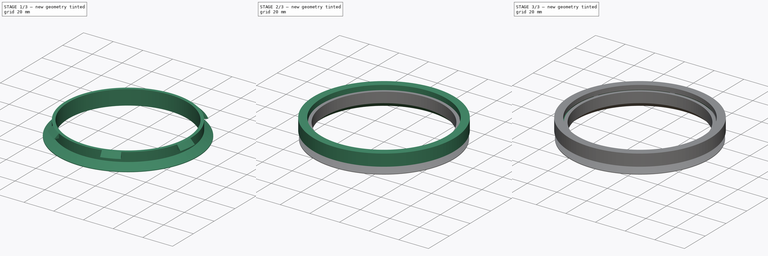
[diagram: build sequence overview — one tinted view per stage of 3, left to right]
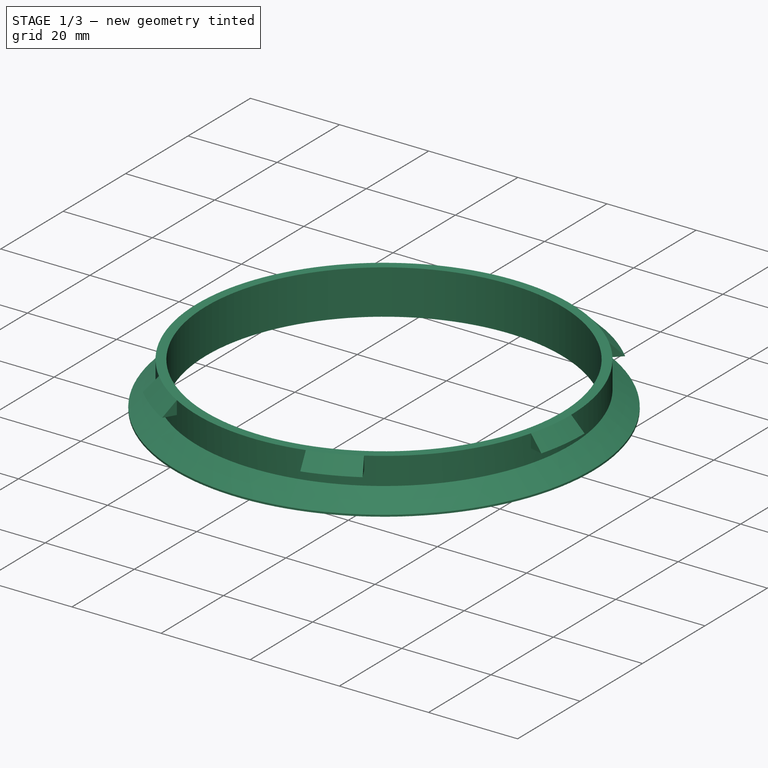
[diagram: stage 1 of 3 — iso view after this stage's code; geometry added in this stage tinted green]
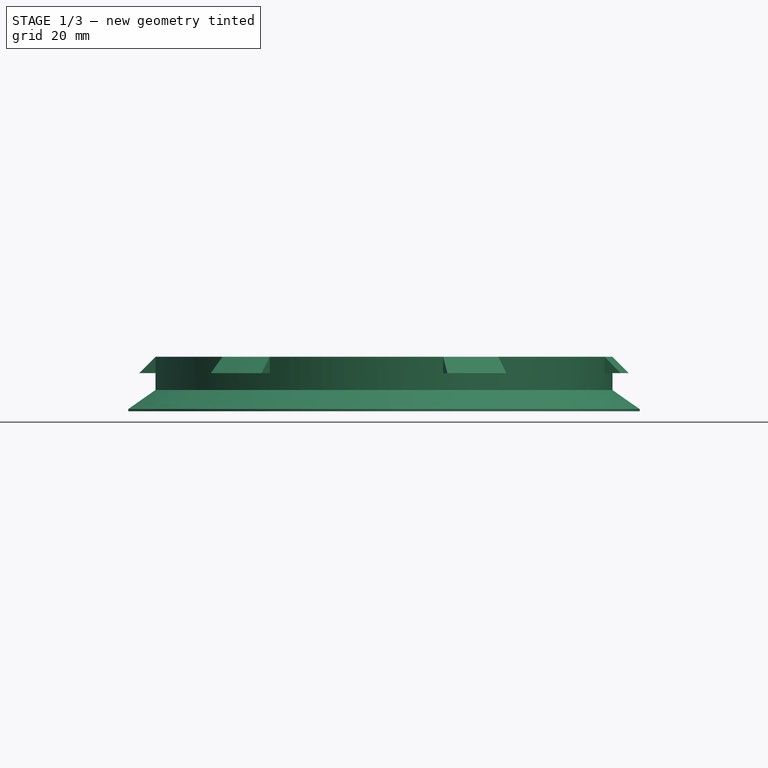
[diagram: stage 1 of 3 — front view after this stage's code; geometry added in this stage tinted green]
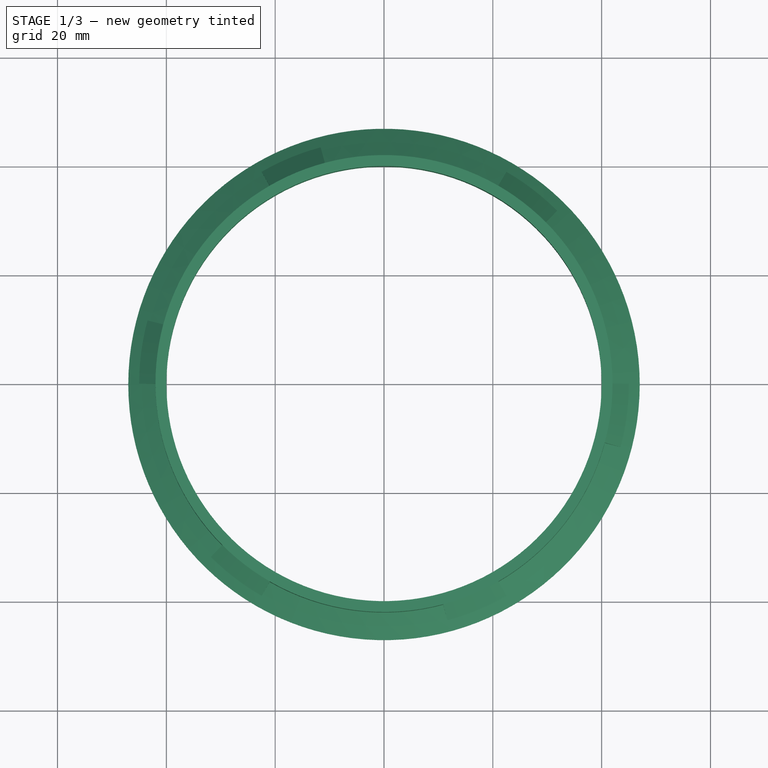
[diagram: stage 1 of 3 — top view after this stage's code; geometry added in this stage tinted green]
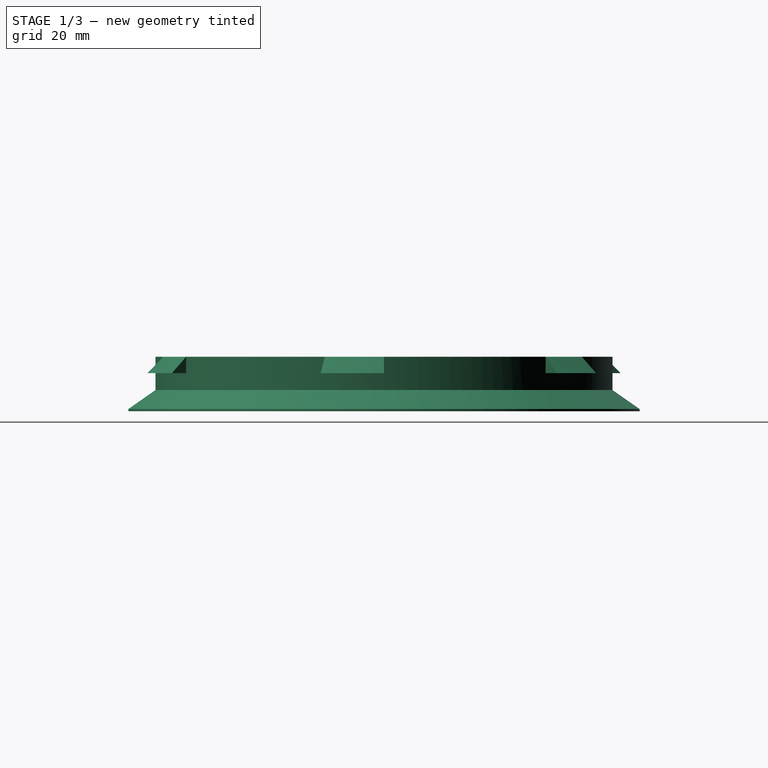
[diagram: stage 1 of 3 — right view after this stage's code; geometry added in this stage tinted green]
FCSTD DOCUMENT  (FreeCAD 1.0R39109 (Git))
Label: light-mount
License: All rights reserved
LicenseURL: https://en.wikipedia.org/wiki/All_rights_reserved
objects: Sketcher::SketchObject×7, PartDesign::Revolution×3, PartDesign::PolarPattern×2, PartDesign::Plane×2, PartDesign::Body×2, PartDesign::Groove×1, PartDesign::SubtractivePipe×1, PartDesign::Chamfer×1
note: 40 computed .brp shape members not serialized (recipe doc carries the construction recipe); baked Part::Feature solids carry a one-line shape summary decoded from their .brp

FEATURE [Sketcher::SketchObject] Sketch
  ArcFitTolerance = 1e-06
  AttachmentSupport = -> [XZ_Plane]
  FullyConstrained = true
  MakeInternals = false
  MapMode = 5
  Placement = pos=(0,0,0) rot=(1,0,0;1.5708rad)
  sketch-geometry (6):
    g0: LineSegment StartX=-42 StartY=10 StartZ=0 EndX=-40 EndY=10 EndZ=0
    g1: LineSegment StartX=-40 StartY=10 StartZ=0 EndX=-40 EndY=0 EndZ=0
    g2: LineSegment StartX=-40 StartY=0 StartZ=0 EndX=-47 EndY=0 EndZ=0
    g3: LineSegment StartX=-47 StartY=0 StartZ=0 EndX=-47 EndY=0.4 EndZ=0
    g4: LineSegment StartX=-47 StartY=0.4 StartZ=0 EndX=-42 EndY=3.90104 EndZ=0
    g5: LineSegment StartX=-42 StartY=3.90104 StartZ=0 EndX=-42 EndY=10 EndZ=0
  constraints (18):
    c: Horizontal(g0)
    c: Coincident(g0,g1)
    c: Coincident(g1,g2)
    c: PointOnObject(g2,g-1)
    c: Horizontal(g2)
    c: Coincident(g2,g3)
    c: Vertical(g3)
    c: Coincident(g3,g4)
    c: Coincident(g4,g5)
    c: Coincident(g5,g0)
    c: Vertical(g5)
    c: DistanceX(g0,g0) = 2
    c: DistanceY(g1,g1) = 10
    c: DistanceY(g3,g3) = 0.4
    c: DistanceX(g1,g-1) = 40
    c: Vertical(g1)
    c: Distance(g4,g3) = 5
    c: Angle(g2,g4) = 0.610865
FEATURE [PartDesign::Revolution] Revolution
  Angle = 360
  Angle2 = 60
  Axis = (0,2e-16,1)
  Base = (0,0,0)
  Placement = pos=(0,0,0) rot=(1,0,0;1.5708rad)
  Profile = -> Sketch
  ReferenceAxis = -> Sketch [V_Axis]
  Refine = true
  Suppressed = false
  Type = 0
FEATURE [Sketcher::SketchObject] Sketch001
  ArcFitTolerance = 1e-06
  AttachmentSupport = -> [XZ_Plane]
  ExternalGeometry = -> [Sketch]
  FullyConstrained = true
  MakeInternals = false
  MapMode = 5
  Placement = pos=(0,0,0) rot=(1,0,0;1.5708rad)
  sketch-geometry (5):
    g0: LineSegment [constr] StartX=-45 StartY=10 StartZ=0 EndX=-45 EndY=7 EndZ=0
    g1: LineSegment StartX=-45 StartY=7 StartZ=0 EndX=-42 EndY=7 EndZ=0
    g2: LineSegment StartX=-42 StartY=7 StartZ=0 EndX=-42 EndY=10 EndZ=0
    g3: LineSegment [constr] StartX=-42 StartY=10 StartZ=0 EndX=-45 EndY=10 EndZ=0
    g4: LineSegment StartX=-45 StartY=7 StartZ=0 EndX=-42 EndY=10 EndZ=0
  constraints (13):
    c: Coincident(g0,g1)
    c: Coincident(g1,g2)
    c: Coincident(g2,g3)
    c: Coincident(g3,g0)
    c: Vertical(g0)
    c: Vertical(g2)
    c: Horizontal(g1)
    c: Horizontal(g3)
    c: Coincident(g-3,g2)
    c: DistanceX(g3,g3) = 3
    c: DistanceY(g0,g0) = 3
    c: Coincident(g4,g0)
    c: Coincident(g4,g2)
FEATURE [PartDesign::Revolution] Revolution001
  Angle = 15
  Angle2 = 60
  Axis = (0,2e-16,1)
  Base = (0,0,0)
  BaseFeature = -> Revolution
  Placement = pos=(0,0,0) rot=(1,0,0;1.5708rad)
  Profile = -> Sketch001
  ReferenceAxis = -> Sketch001 [V_Axis]
  Refine = true
  Reversed = true
  Suppressed = false
  Type = 0
FEATURE [PartDesign::PolarPattern] PolarPattern
  Angle = 360
  Axis = -> Sketch001 [V_Axis]
  BaseFeature = -> Revolution001
  Mode = 0
  Occurrences = 6
  Offset = 120
  Originals = -> [Revolution001]
  Placement = pos=(0,0,0) rot=(1,0,0;1.5708rad)
  Refine = true
  Suppressed = false
  TransformMode = 0
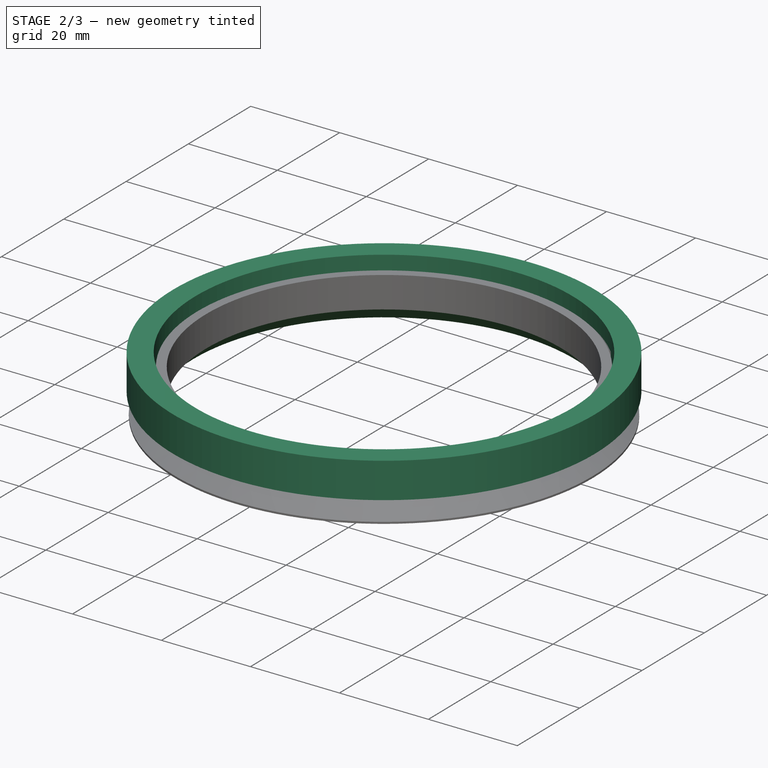
[diagram: stage 2 of 3 — iso view after this stage's code; geometry added in this stage tinted green]
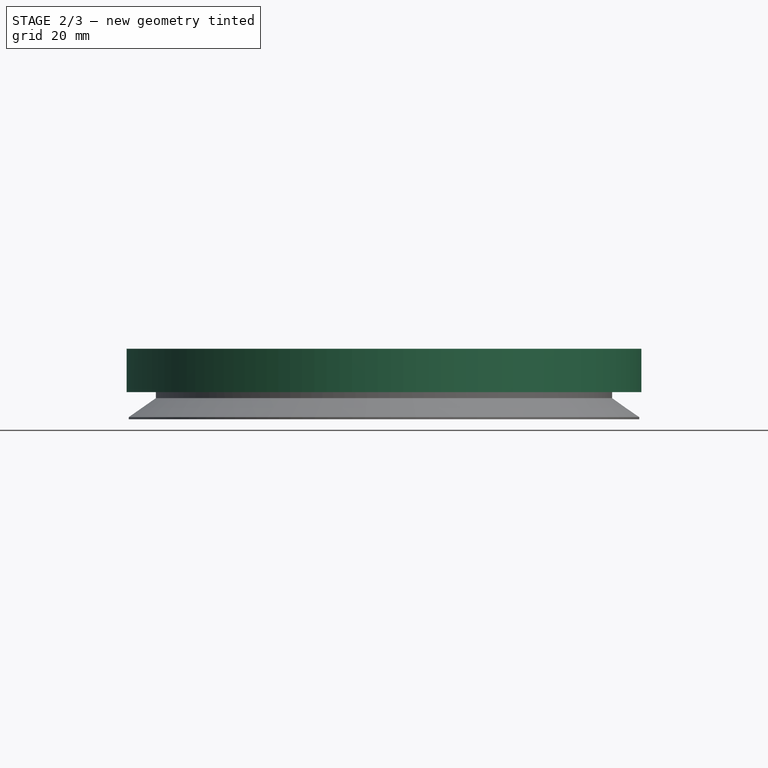
[diagram: stage 2 of 3 — front view after this stage's code; geometry added in this stage tinted green]
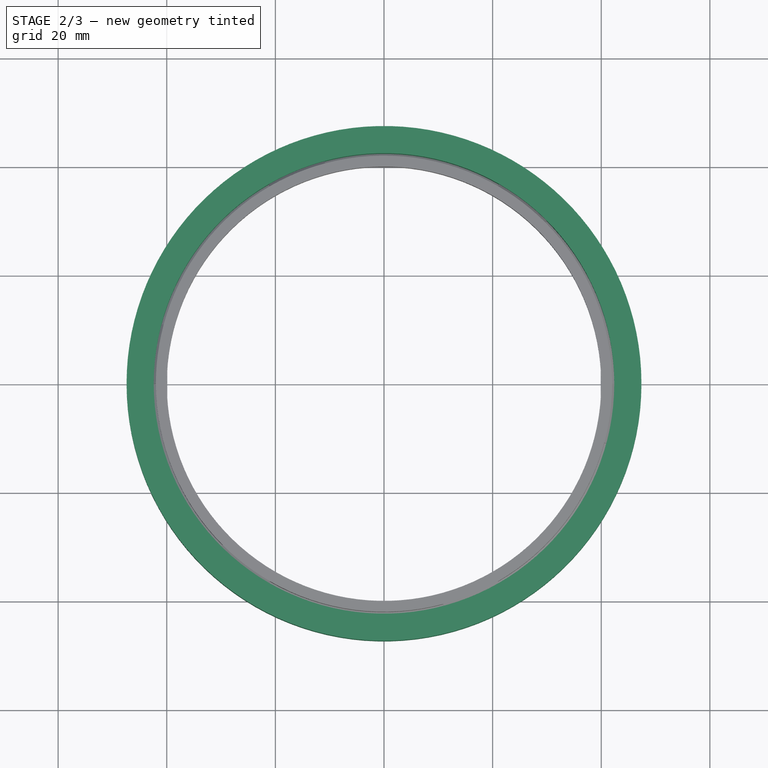
[diagram: stage 2 of 3 — top view after this stage's code; geometry added in this stage tinted green]
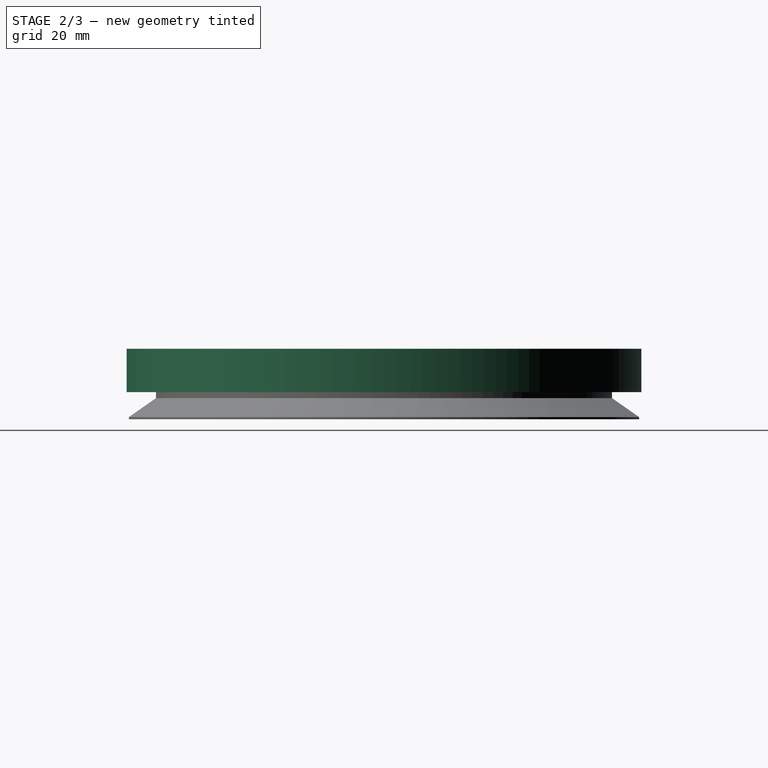
[diagram: stage 2 of 3 — right view after this stage's code; geometry added in this stage tinted green]
FEATURE [Sketcher::SketchObject] Sketch002
  ArcFitTolerance = 1e-06
  AttachmentSupport = -> [XZ_Plane001]
  FullyConstrained = true
  MakeInternals = false
  MapMode = 5
  Placement = pos=(0,0,0) rot=(1,0,0;1.5708rad)
  sketch-geometry (5):
    g0: LineSegment StartX=-42.4 StartY=10 StartZ=0 EndX=-42.4 EndY=5 EndZ=0
    g1: LineSegment StartX=-42.4 StartY=5 StartZ=0 EndX=-47.4 EndY=5 EndZ=0
    g2: LineSegment StartX=-47.4 StartY=5 StartZ=0 EndX=-47.4 EndY=13 EndZ=0
    g3: LineSegment StartX=-47.4 StartY=13 StartZ=0 EndX=-42.4 EndY=13 EndZ=0
    g4: LineSegment StartX=-42.4 StartY=13 StartZ=0 EndX=-42.4 EndY=10 EndZ=0
  constraints (15):
    c: Vertical(g0)
    c: Coincident(g0,g1)
    c: Horizontal(g1)
    c: Coincident(g1,g2)
    c: Vertical(g2)
    c: Coincident(g2,g3)
    c: Horizontal(g3)
    c: Coincident(g3,g4)
    c: Vertical(g4)
    c: DistanceX(g1,g1) = 5
    c: DistanceY(g-1,g4) = 10
    c: DistanceY(g0,g0) = 5
    c: DistanceY(g4,g4) = 3
    c: DistanceX(g0,g-1) = 42.4
    c: Coincident(g4,g0)
FEATURE [PartDesign::Revolution] Revolution002
  Angle = 360
  Angle2 = 60
  Axis = (0,2e-16,1)
  Base = (0,0,0)
  Placement = pos=(0,0,0) rot=(1,0,0;1.5708rad)
  Profile = -> Sketch002
  ReferenceAxis = -> Sketch002 [V_Axis]
  Refine = true
  Suppressed = false
  Type = 0
FEATURE [PartDesign::Body] Body001  label="Light Mount"
  AllowCompound = false
  Group = -> [Sketch002,Revolution002,Sketch004,Groove,DatumPlane,Sketch005,Sketch006,DatumPlane001,Sketch009,SubtractivePipe,PolarPattern001]
  Origin = -> Origin001
  Tip = -> PolarPattern001
FEATURE [PartDesign::Chamfer] Chamfer
  Angle = 45
  Base = -> PolarPattern [Edge66]
  BaseFeature = -> PolarPattern
  ChamferType = 0
  FlipDirection = false
  Placement = pos=(0,0,0) rot=(1,0,0;1.5708rad)
  Refine = true
  Size = 3
  Size2 = 1
  SupportTransform = false
  Suppressed = false
  UseAllEdges = false
FEATURE [PartDesign::Body] Body  label="Bayonet Ring"
  AllowCompound = false
  Group = -> [Sketch,Revolution,Sketch001,Revolution001,PolarPattern,Chamfer]
  Origin = -> Origin
  Tip = -> Chamfer
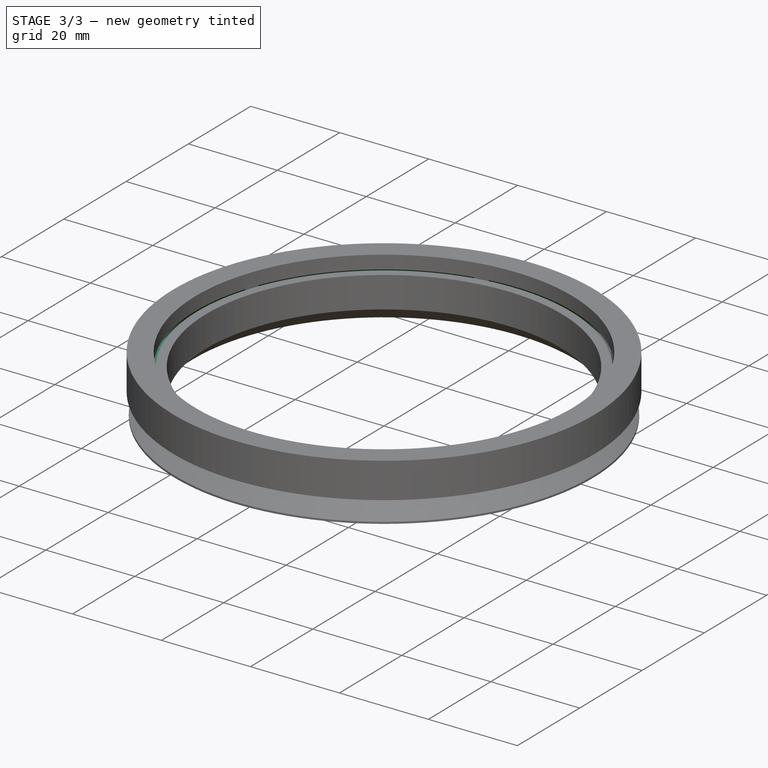
[diagram: stage 3 of 3 — iso view after this stage's code; geometry added in this stage tinted green]
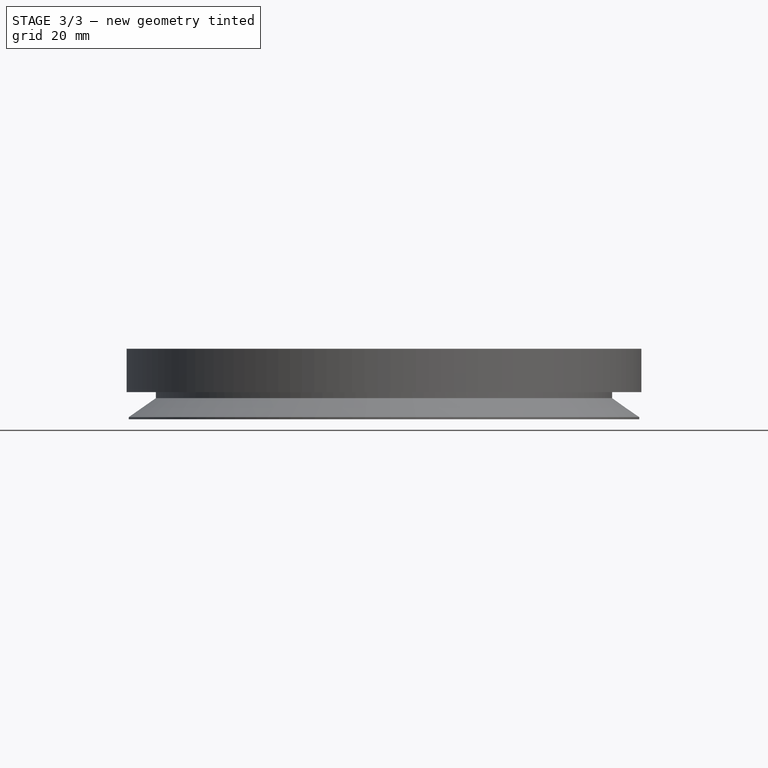
[diagram: stage 3 of 3 — front view after this stage's code; geometry added in this stage tinted green]
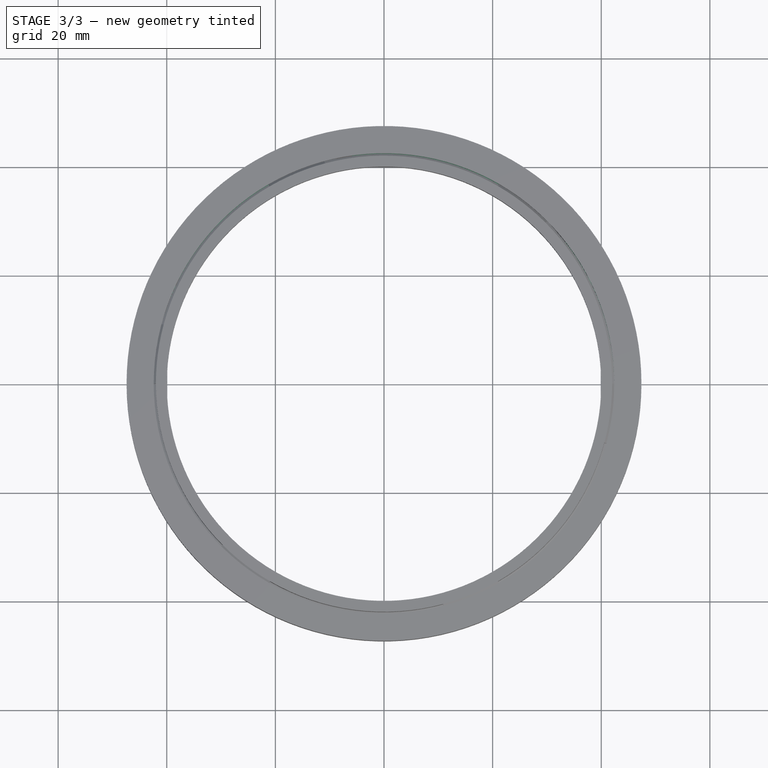
[diagram: stage 3 of 3 — top view after this stage's code; geometry added in this stage tinted green]
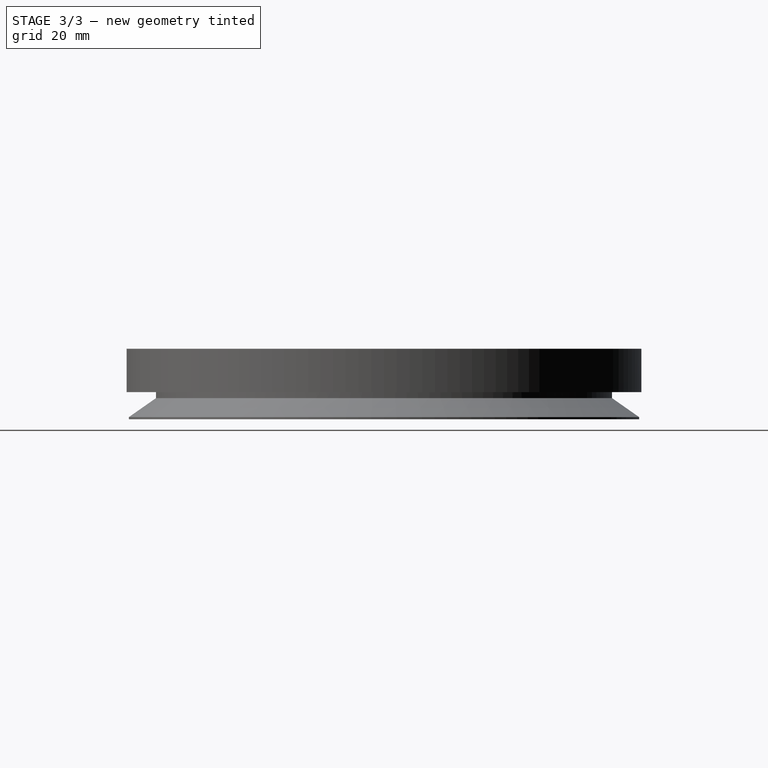
[diagram: stage 3 of 3 — right view after this stage's code; geometry added in this stage tinted green]
FEATURE [Sketcher::SketchObject] Sketch004
  ArcFitTolerance = 1e-06
  AttachmentSupport = -> [XZ_Plane001]
  ExternalGeometry = -> [Sketch002]
  FullyConstrained = true
  MakeInternals = false
  MapMode = 5
  Placement = pos=(0,0,0) rot=(1,0,0;1.5708rad)
  sketch-geometry (4):
    g0: LineSegment StartX=-45.4 StartY=7 StartZ=0 EndX=-45.4 EndY=5 EndZ=0
    g1: LineSegment StartX=-45.4 StartY=5 StartZ=0 EndX=-42.4 EndY=5 EndZ=0
    g2: LineSegment StartX=-42.4 StartY=5 StartZ=0 EndX=-42.4 EndY=10 EndZ=0
    g3: LineSegment StartX=-42.4 StartY=10 StartZ=0 EndX=-45.4 EndY=7 EndZ=0
  constraints (11):
    c: Coincident(g0,g1)
    c: Coincident(g1,g2)
    c: Coincident(g2,g3)
    c: Coincident(g3,g0)
    c: Vertical(g0)
    c: Vertical(g2)
    c: Horizontal(g1)
    c: Coincident(g-3,g2)
    c: DistanceY(g2,g2) = 5
    c: DistanceX(g3,g3) = 3
    c: Angle(g3,g2) = 0.785398
FEATURE [PartDesign::Groove] Groove
  Angle = 18
  Angle2 = 60
  Axis = (0,2e-16,1)
  Base = (0,0,0)
  BaseFeature = -> Revolution002
  Placement = pos=(0,0,0) rot=(1,0,0;1.5708rad)
  Profile = -> Sketch004
  ReferenceAxis = -> Sketch004 [V_Axis]
  Refine = true
  Reversed = true
  Suppressed = false
  Type = 0
FEATURE [PartDesign::Plane] DatumPlane
  AttachmentOffset = pos=(0,0,0) rot=(0,1,0;0.663225rad)
  AttachmentSupport = -> [XZ_Plane001]
  Length = 149.382
  MapMode = 5
  Placement = pos=(0,0,0) rot=(0.89907,0.309575,0.309575;1.67699rad)
  ResizeMode = 0
  Width = 66.3137
FEATURE [Sketcher::SketchObject] Sketch005
  ArcFitTolerance = 1e-06
  AttachmentSupport = -> [XZ_Plane001]
  ExternalGeometry = -> [Sketch004]
  FullyConstrained = true
  MakeInternals = false
  MapMode = 5
  Placement = pos=(0,0,0) rot=(1,0,0;1.5708rad)
  sketch-geometry (8):
    g0: LineSegment StartX=-45.4 StartY=7 StartZ=0 EndX=-45.4 EndY=6 EndZ=0
    g1: LineSegment StartX=-45.4 StartY=6 StartZ=0 EndX=-42.4 EndY=6 EndZ=0
    g2: LineSegment [constr] StartX=-42.4 StartY=6 StartZ=0 EndX=-42.4 EndY=10 EndZ=0
    g3: LineSegment StartX=-42.4 StartY=10 StartZ=0 EndX=-45.4 EndY=7 EndZ=0
    g4: LineSegment [constr] StartX=-42.4 StartY=10 StartZ=0 EndX=-42.4 EndY=6 EndZ=0
    g5: LineSegment StartX=-42.4 StartY=6 StartZ=0 EndX=-41.4 EndY=6 EndZ=0
    g6: LineSegment StartX=-41.4 StartY=6 StartZ=0 EndX=-41.4 EndY=10 EndZ=0
    g7: LineSegment StartX=-41.4 StartY=10 StartZ=0 EndX=-42.4 EndY=10 EndZ=0
  constraints (21):
    c: Coincident(g0,g1)
    c: Coincident(g1,g2)
    c: Coincident(g2,g3)
    c: Coincident(g3,g0)
    c: Vertical(g0)
    c: Vertical(g2)
    c: Horizontal(g1)
    c: Coincident(g-3,g2)
    c: DistanceX(g3,g3) = 3
    c: DistanceY(g2,g2) = 4
    c: Angle(g3,g2) = 0.785398
    c: Coincident(g4,g5)
    c: Coincident(g5,g6)
    c: Coincident(g6,g7)
    c: Coincident(g7,g4)
    c: Vertical(g6)
    c: Horizontal(g5)
    c: Horizontal(g7)
    c: Coincident(g4,g2)
    c: Coincident(g4,g1)
    c: DistanceX(g5,g5) = 1
FEATURE [Sketcher::SketchObject] Sketch006
  ArcFitTolerance = 1e-06
  AttachmentSupport = -> [DatumPlane]
  FullyConstrained = true
  MakeInternals = false
  MapMode = 5
  Placement = pos=(0,0,0) rot=(0.89907,0.309575,0.309575;1.67699rad)
  sketch-geometry (7):
    g0: LineSegment StartX=-45 StartY=7.4 StartZ=0 EndX=-42.4 EndY=7.4 EndZ=0
    g1: LineSegment [constr] StartX=-42.4 StartY=7.4 StartZ=0 EndX=-42.4 EndY=10 EndZ=0
    g2: LineSegment StartX=-42.4 StartY=10 StartZ=0 EndX=-45 EndY=7.4 EndZ=0
    g3: LineSegment [constr] StartX=-42.4 StartY=10 StartZ=0 EndX=-42.4 EndY=7.4 EndZ=0
    g4: LineSegment StartX=-42.4 StartY=7.4 StartZ=0 EndX=-41.4 EndY=7.4 EndZ=0
    g5: LineSegment StartX=-41.4 StartY=7.4 StartZ=0 EndX=-41.4 EndY=10 EndZ=0
    g6: LineSegment StartX=-41.4 StartY=10 StartZ=0 EndX=-42.4 EndY=10 EndZ=0
  constraints (19):
    c: Coincident(g0,g1)
    c: Coincident(g1,g2)
    c: Vertical(g1)
    c: Horizontal(g0)
    c: DistanceX(g1,g-1) = 42.4
    c: DistanceY(g-1,g1) = 10
    c: DistanceY(g1,g1) = 2.6
    c: Angle(g2,g1) = 0.785398
    c: Coincident(g2,g0)
    c: Coincident(g3,g4)
    c: Coincident(g4,g5)
    c: Coincident(g5,g6)
    c: Coincident(g6,g3)
    c: Vertical(g5)
    c: Horizontal(g4)
    c: Horizontal(g6)
    c: Coincident(g3,g1)
    c: Coincident(g3,g0)
    c: DistanceX(g4,g4) = 1
FEATURE [PartDesign::Plane] DatumPlane001
  AttachmentOffset = pos=(0,0,10) rot=(0,0,1;0rad)
  AttachmentSupport = -> [XY_Plane001]
  Length = 113.76
  MapMode = 5
  Placement = pos=(0,0,10) rot=(0,0,1;0rad)
  ResizeMode = 0
  Width = 113.76
FEATURE [Sketcher::SketchObject] Sketch009
  ArcFitTolerance = 1e-06
  AttachmentSupport = -> [DatumPlane001]
  ExternalGeometry = -> [Sketch005,Sketch006]
  FullyConstrained = true
  MakeInternals = false
  MapMode = 5
  Placement = pos=(0,0,10) rot=(0,0,1;0rad)
  sketch-geometry (1):
    g0: ArcOfCircle CenterX=0 CenterY=0 CenterZ=0 NormalX=0 NormalY=0 NormalZ=1 AngleXU=0 Radius=42.4 StartAngle=3.14159 EndAngle=3.80482
  constraints (3):
    c: Coincident(g0,g-1)
    c: Coincident(g0,g-3)
    c: Angle(g0) = 0.663225
FEATURE [PartDesign::SubtractivePipe] SubtractivePipe
  AuxilleryCurvelinear = true
  AuxillerySpineTangent = false
  BaseFeature = -> Groove
  Binormal = (0,0,0)
  Mode = 0
  Placement = pos=(0,0,0) rot=(1,0,0;1.5708rad)
  Profile = -> Sketch005
  Refine = true
  Sections = -> [Sketch006]
  Spine = -> Sketch009 [Edge1]
  SpineTangent = false
  Suppressed = false
  Transformation = 1
  Transition = 0
FEATURE [PartDesign::PolarPattern] PolarPattern001
  Angle = 360
  Axis = -> Sketch004 [V_Axis]
  BaseFeature = -> SubtractivePipe
  Mode = 0
  Occurrences = 6
  Offset = 120
  Originals = -> [Groove,SubtractivePipe]
  Placement = pos=(0,0,0) rot=(1,0,0;1.5708rad)
  Refine = true
  Suppressed = false
  TransformMode = 0
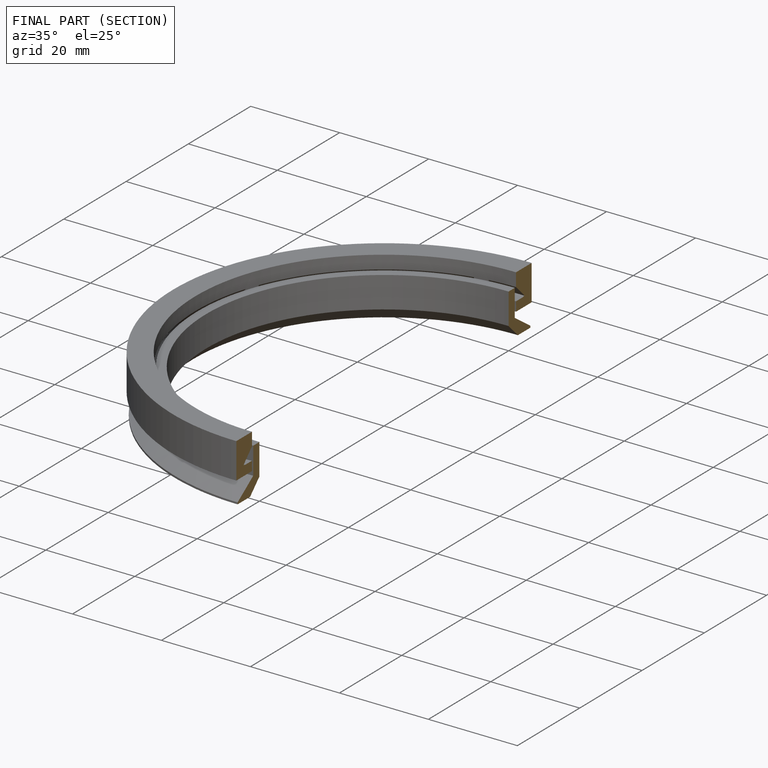
[diagram: finished part — half-section view (interior)]
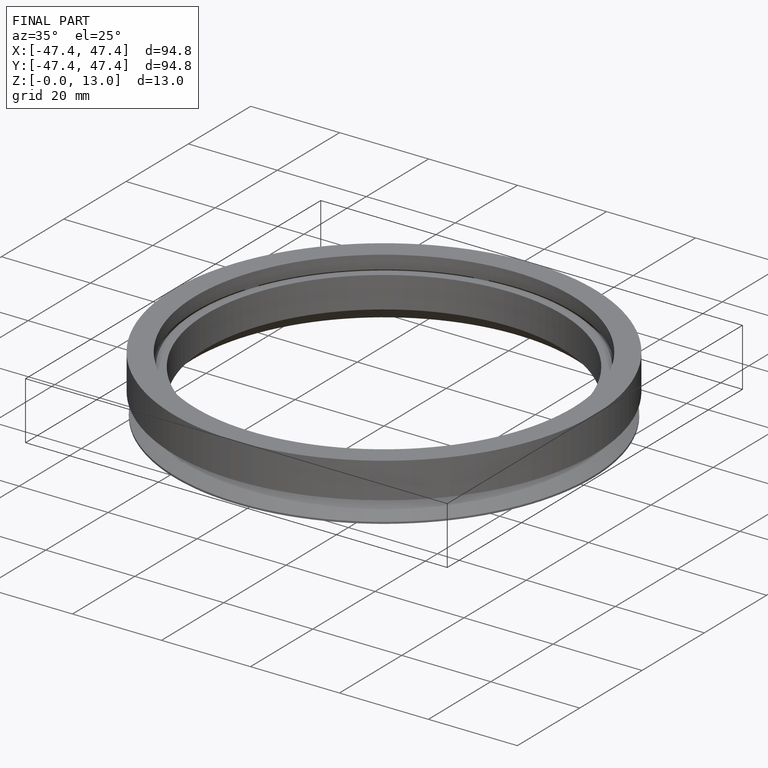
[diagram: finished part — iso view with bounding-box wireframe]
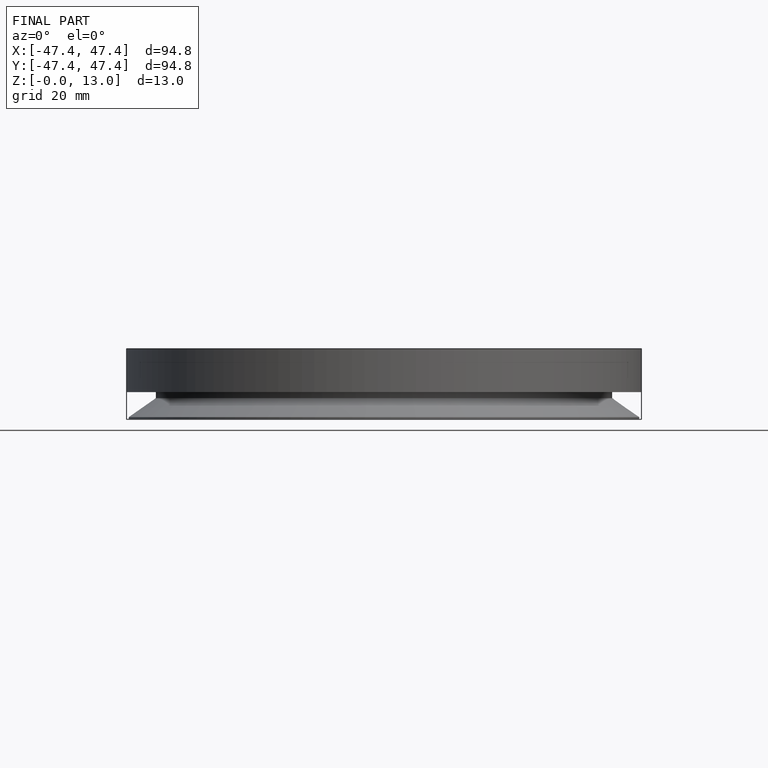
[diagram: finished part — front view with bounding-box wireframe]
